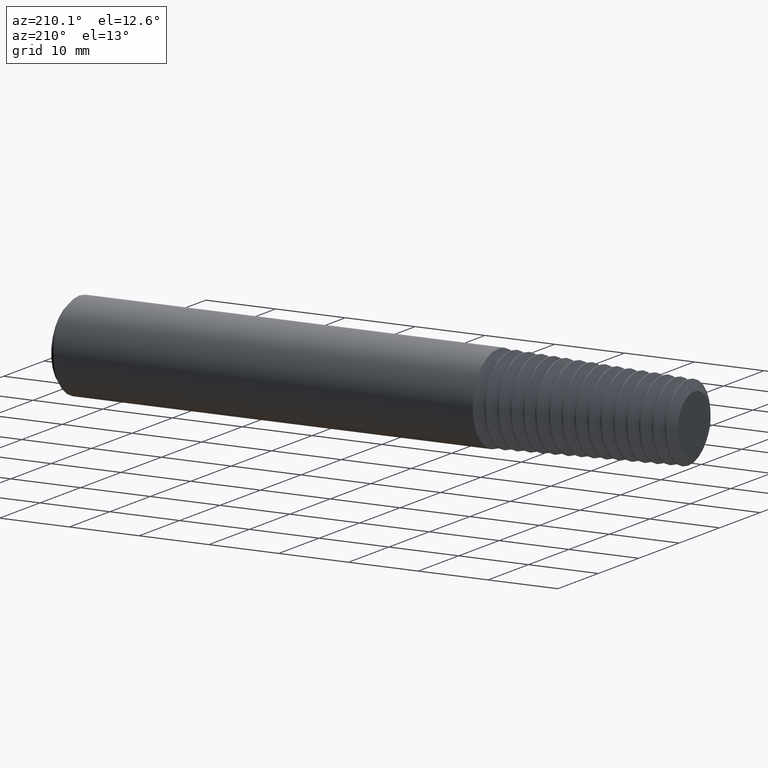
[diagram: clean part render]
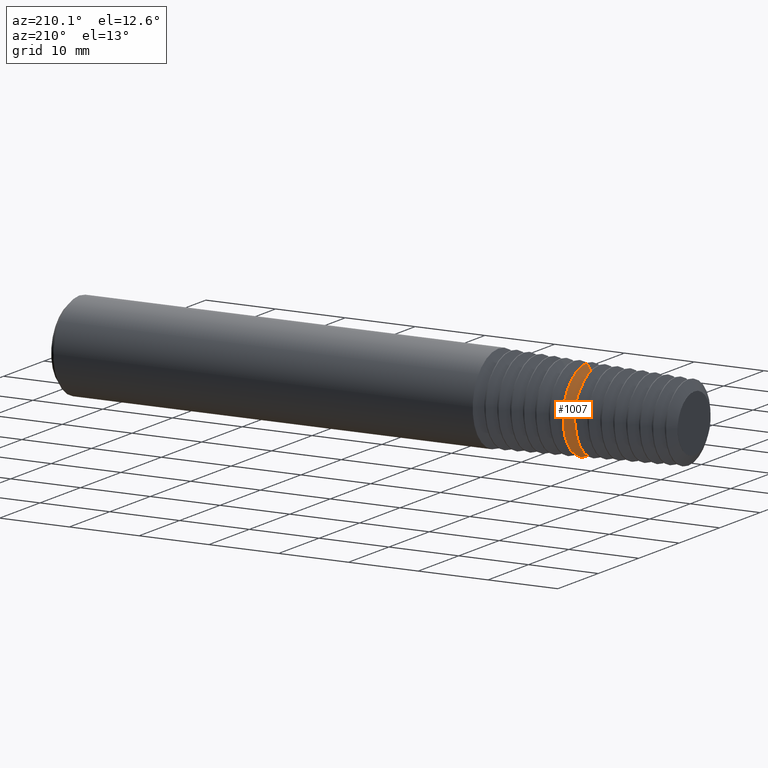
[diagram: same view with one face highlighted and labeled with its STEP entity id]
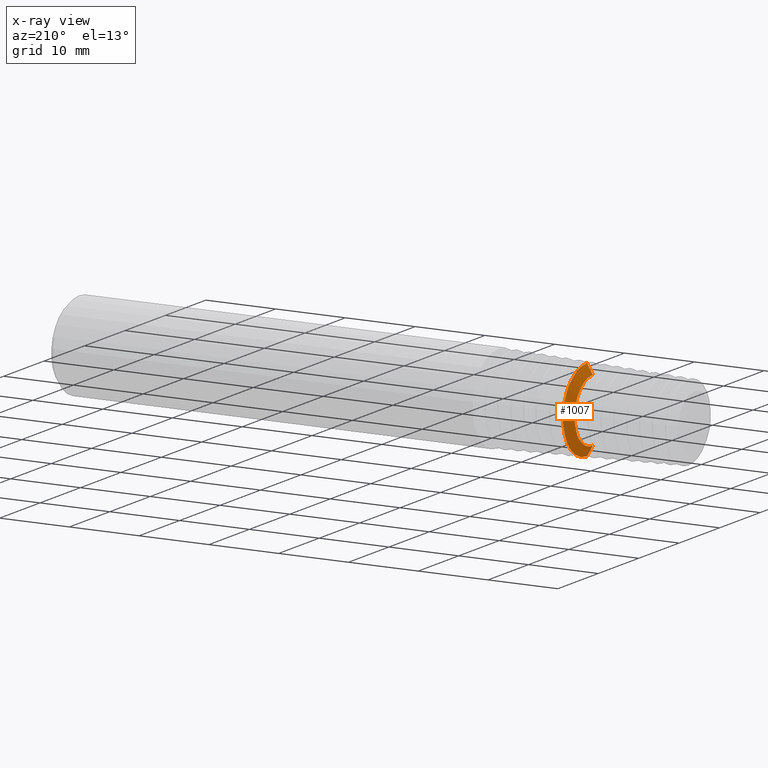
[diagram: x-ray of the same camera — body ghosted, the highlighted face saturated]
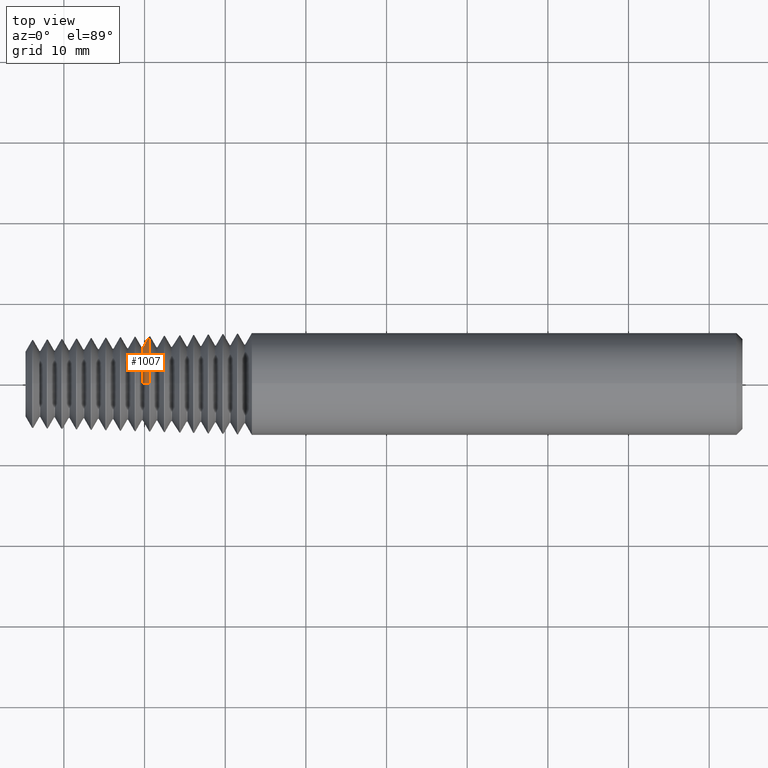
[diagram: same view with one face highlighted and labeled with its STEP entity id]
A machine part, auxiliary view. The second image highlights one B-rep face of the part: STEP entity #1007.
The next image is the same camera in x-ray: the body ghosted, the highlighted face saturated — about 0% of this face is hidden behind the body in this view.
A second angle (top view) of the same face is appended — the face is thin or edge-on in the first view.
In plain terms, the highlighted conical surface has half-angle 60.258 deg.
Its self-contained STEP definition (entity closure, byte-faithful):
#65 = CARTESIAN_POINT ( 'NONE',  ( -0.3704577586016505886, 0.0000000000000000000, -0.2337914817976245174 ) ) ;
#260 = CARTESIAN_POINT ( 'NONE',  ( -0.4025714284142132837, 0.0000000000000000000, -0.1775870853809435879 ) ) ;
#261 = ORIENTED_EDGE ( 'NONE', *, *, #3013, .T. ) ;
#583 = EDGE_LOOP ( 'NONE', ( #2983, #261, #1697, #3111 ) ) ;
#703 = AXIS2_PLACEMENT_3D ( 'NONE', #1290, #1567, #2073 ) ;
#739 = LINE ( 'NONE', #65, #3256 ) ;
#759 = CARTESIAN_POINT ( 'NONE',  ( -0.4025714284142132837, 2.174814556816802921E-17, 0.1775870853809435879 ) ) ;
#787 = CARTESIAN_POINT ( 'NONE',  ( -0.3704577586016505886, 2.863119898513775688E-17, 0.2337914817976245174 ) ) ;
#811 = VERTEX_POINT ( 'NONE', #1728 ) ;
#925 = VERTEX_POINT ( 'NONE', #260 ) ;
#1007 = ADVANCED_FACE ( 'NONE', ( #3045 ), #2849, .T. ) ;
#1032 = CIRCLE ( 'NONE', #3053, 0.2337914817976245174 ) ;
#1149 = EDGE_CURVE ( 'NONE', #925, #811, #739, .T. ) ;
#1215 = DIRECTION ( 'NONE',  ( 0.0000000000000000000, 0.0000000000000000000, -1.000000000000000000 ) ) ;
#1259 = CARTESIAN_POINT ( 'NONE',  ( -0.3704577586016505886, 2.863119898513775688E-17, 0.2337914817976245174 ) ) ;
#1273 = EDGE_CURVE ( 'NONE', #925, #2502, #1847, .T. ) ;
#1290 = CARTESIAN_POINT ( 'NONE',  ( -0.3704577586016505886, 0.0000000000000000000, 0.0000000000000000000 ) ) ;
#1519 = DIRECTION ( 'NONE',  ( 0.4961025086586953181, 1.063316677078953944E-16, 0.8682639580810371793 ) ) ;
#1567 = DIRECTION ( 'NONE',  ( 1.000000000000000000, -0.0000000000000000000, -0.0000000000000000000 ) ) ;
#1697 = ORIENTED_EDGE ( 'NONE', *, *, #3132, .F. ) ;
#1728 = CARTESIAN_POINT ( 'NONE',  ( -0.3704577586016505886, 0.0000000000000000000, -0.2337914817976245174 ) ) ;
#1847 = CIRCLE ( 'NONE', #2172, 0.1775870853809435879 ) ;
#1925 = VERTEX_POINT ( 'NONE', #787 ) ;
#1952 = VECTOR ( 'NONE', #1519, 39.37007874015748854 ) ;
#1993 = DIRECTION ( 'NONE',  ( 1.000000000000000000, -0.0000000000000000000, -0.0000000000000000000 ) ) ;
#2073 = DIRECTION ( 'NONE',  ( 0.0000000000000000000, 0.0000000000000000000, -1.000000000000000000 ) ) ;
#2157 = LINE ( 'NONE', #1259, #1952 ) ;
#2172 = AXIS2_PLACEMENT_3D ( 'NONE', #2762, #2747, #1215 ) ;
#2476 = CARTESIAN_POINT ( 'NONE',  ( -0.3704577586016505886, 0.0000000000000000000, 0.0000000000000000000 ) ) ;
#2479 = DIRECTION ( 'NONE',  ( 0.4961025086586953181, 0.0000000000000000000, -0.8682639580810371793 ) ) ;
#2502 = VERTEX_POINT ( 'NONE', #759 ) ;
#2747 = DIRECTION ( 'NONE',  ( 1.000000000000000000, -0.0000000000000000000, -0.0000000000000000000 ) ) ;
#2762 = CARTESIAN_POINT ( 'NONE',  ( -0.4025714284142132837, 0.0000000000000000000, 0.0000000000000000000 ) ) ;
#2849 = CONICAL_SURFACE ( 'NONE', #703, 0.2337914817976245174, 1.051692169990561920 ) ;
#2983 = ORIENTED_EDGE ( 'NONE', *, *, #1273, .T. ) ;
#3013 = EDGE_CURVE ( 'NONE', #2502, #1925, #2157, .T. ) ;
#3045 = FACE_OUTER_BOUND ( 'NONE', #583, .T. ) ;
#3053 = AXIS2_PLACEMENT_3D ( 'NONE', #2476, #1993, #3211 ) ;
#3111 = ORIENTED_EDGE ( 'NONE', *, *, #1149, .F. ) ;
#3132 = EDGE_CURVE ( 'NONE', #811, #1925, #1032, .T. ) ;
#3211 = DIRECTION ( 'NONE',  ( 0.0000000000000000000, 0.0000000000000000000, -1.000000000000000000 ) ) ;
#3256 = VECTOR ( 'NONE', #2479, 39.37007874015748854 ) ;